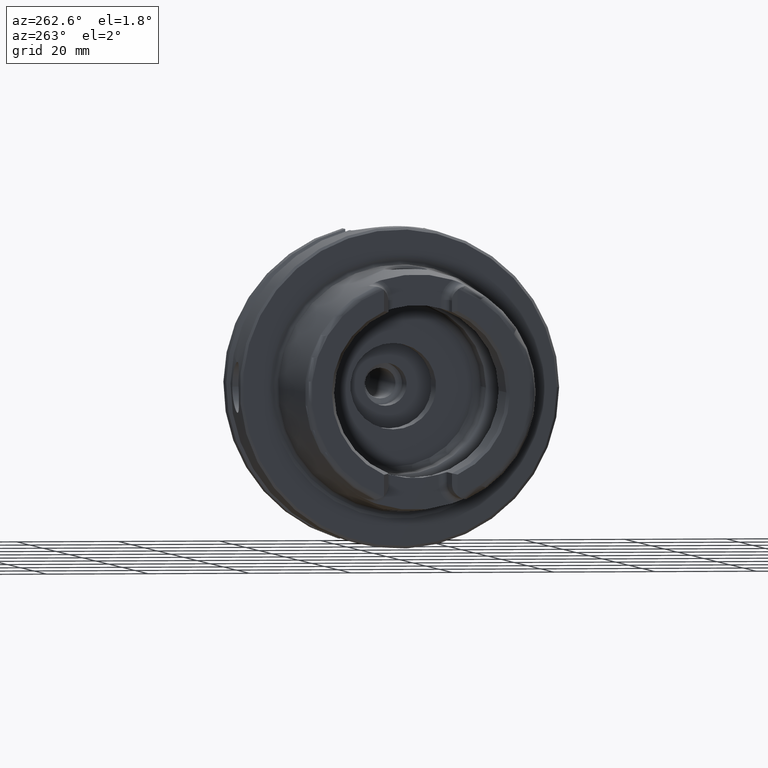
[diagram: clean part render]
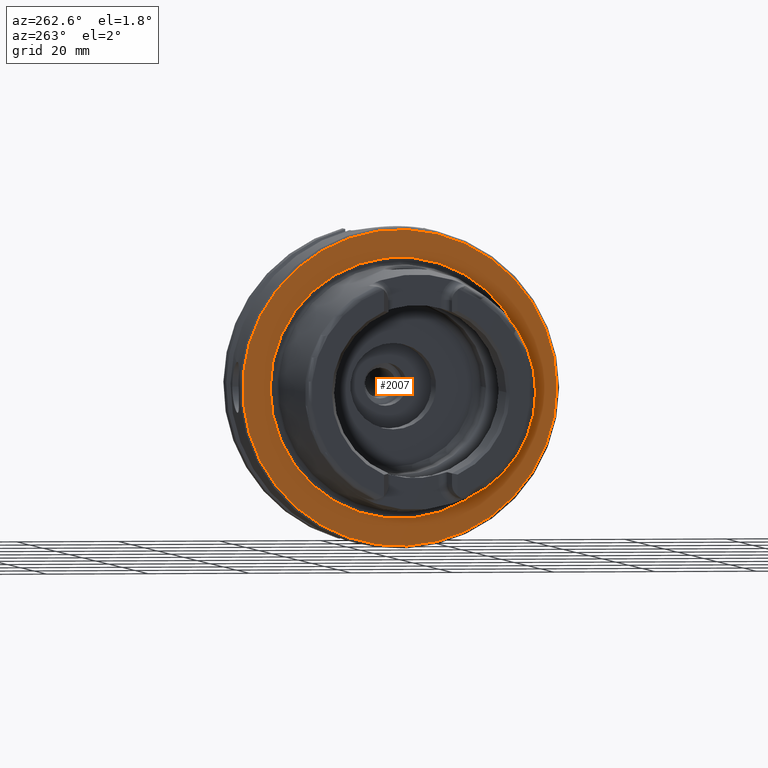
[diagram: same view with one face highlighted and labeled with its STEP entity id]
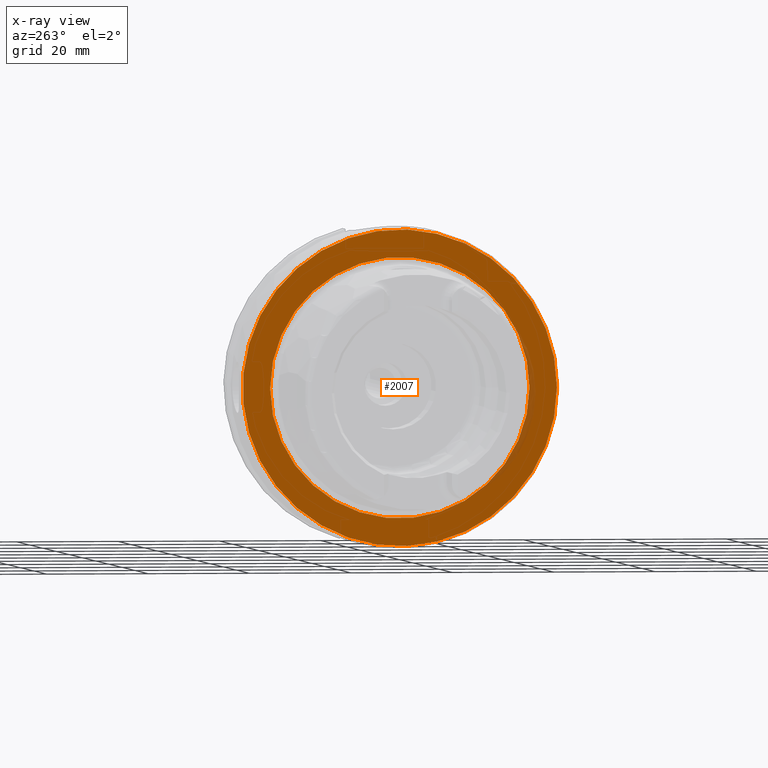
[diagram: x-ray of the same camera — body ghosted, the highlighted face saturated]
A machine part, auxiliary view. The second image highlights one B-rep face of the part: STEP entity #2007.
The next image is the same camera in x-ray: the body ghosted, the highlighted face saturated — about 4% of this face is hidden behind the body in this view.
In plain terms, the highlighted planar face has unit normal (-1, 0, 0).
Its self-contained STEP definition (entity closure, byte-faithful):
#105=FACE_BOUND('',#415,.T.);
#145=PLANE('',#2265);
#293=FACE_OUTER_BOUND('',#414,.T.);
#414=EDGE_LOOP('',(#1846));
#415=EDGE_LOOP('',(#1847));
#745=CIRCLE('',#2264,25.5879092835167);
#746=CIRCLE('',#2266,31.);
#944=VERTEX_POINT('',#4286);
#945=VERTEX_POINT('',#4290);
#1246=EDGE_CURVE('',#944,#944,#745,.T.);
#1247=EDGE_CURVE('',#945,#945,#746,.T.);
#1846=ORIENTED_EDGE('',*,*,#1247,.F.);
#1847=ORIENTED_EDGE('',*,*,#1246,.T.);
#2007=ADVANCED_FACE('',(#293,#105),#145,.T.);
#2264=AXIS2_PLACEMENT_3D('',#4288,#2837,#2838);
#2265=AXIS2_PLACEMENT_3D('',#4289,#2839,#2840);
#2266=AXIS2_PLACEMENT_3D('',#4291,#2841,#2842);
#2837=DIRECTION('center_axis',(1.,0.,0.));
#2838=DIRECTION('ref_axis',(0.,0.,-1.));
#2839=DIRECTION('center_axis',(-1.,0.,0.));
#2840=DIRECTION('ref_axis',(0.,0.,1.));
#2841=DIRECTION('center_axis',(1.,0.,0.));
#2842=DIRECTION('ref_axis',(0.,0.,-1.));
#4286=CARTESIAN_POINT('',(-3.55618312575245E-16,-25.5879092835167,-3.13361512009315E-15));
#4288=CARTESIAN_POINT('Origin',(0.,0.,0.));
#4289=CARTESIAN_POINT('Origin',(0.,31.,0.));
#4290=CARTESIAN_POINT('',(-5.89805981832114E-16,-31.,-3.7964050773568E-15));
#4291=CARTESIAN_POINT('Origin',(0.,0.,0.));